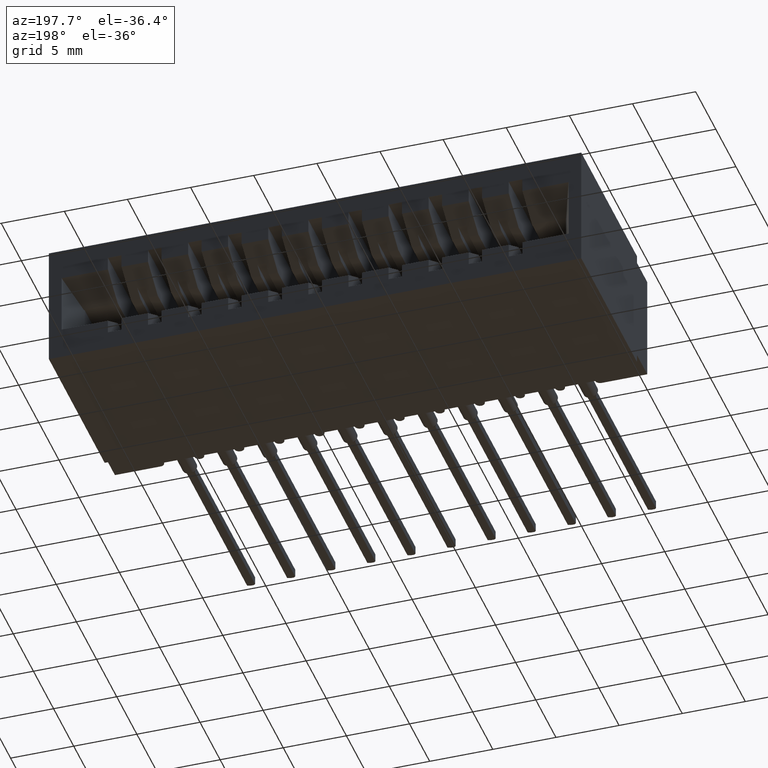
[diagram: clean part render]
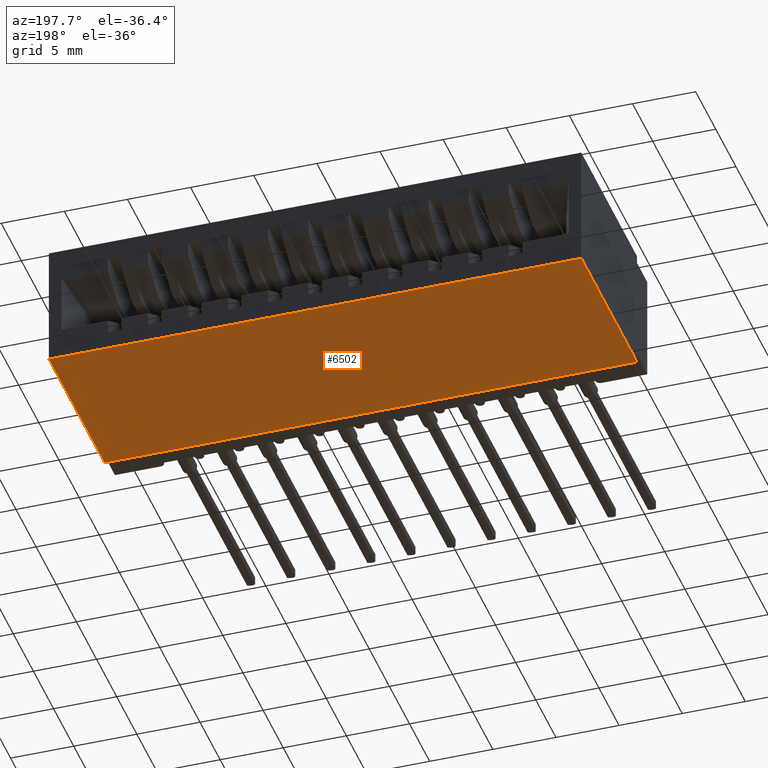
[diagram: same view with one face highlighted and labeled with its STEP entity id]
A machine part, auxiliary view. The second image highlights one B-rep face of the part: STEP entity #6502.
In plain terms, the highlighted planar face has unit normal (0, 0, 1).
Its self-contained STEP definition (entity closure, byte-faithful):
#139 = EDGE_LOOP ( 'NONE', ( #13886, #20060, #6934, #12997 ) ) ;
#1458 = EDGE_CURVE ( 'NONE', #14097, #2263, #3202, .T. ) ;
#2263 = VERTEX_POINT ( 'NONE', #16238 ) ;
#2343 = FACE_OUTER_BOUND ( 'NONE', #139, .T. ) ;
#2993 = EDGE_CURVE ( 'NONE', #19925, #10381, #3387, .T. ) ;
#3087 = CARTESIAN_POINT ( 'NONE',  ( 1.660000000000000142, 0.1000000000000000056, -0.3900000000000000133 ) ) ;
#3202 = LINE ( 'NONE', #3087, #6222 ) ;
#3261 = CARTESIAN_POINT ( 'NONE',  ( 0.0000000000000000000, 0.6449999999999999067, -0.3900000000000000133 ) ) ;
#3387 = LINE ( 'NONE', #19343, #20324 ) ;
#3410 = DIRECTION ( 'NONE',  ( -1.000000000000000000, -0.0000000000000000000, -0.0000000000000000000 ) ) ;
#3418 = EDGE_CURVE ( 'NONE', #10381, #2263, #4744, .T. ) ;
#3483 = DIRECTION ( 'NONE',  ( -0.0000000000000000000, -1.000000000000000000, -0.0000000000000000000 ) ) ;
#4744 = LINE ( 'NONE', #3261, #20330 ) ;
#5070 = CARTESIAN_POINT ( 'NONE',  ( 1.660000000000000142, 0.6449999999999999067, -0.3900000000000000133 ) ) ;
#5661 = CARTESIAN_POINT ( 'NONE',  ( 0.0000000000000000000, 0.6449999999999999067, -0.3900000000000000133 ) ) ;
#6222 = VECTOR ( 'NONE', #3410, 39.37007874015748143 ) ;
#6502 = ADVANCED_FACE ( 'NONE', ( #2343 ), #8852, .F. ) ;
#6934 = ORIENTED_EDGE ( 'NONE', *, *, #3418, .F. ) ;
#7132 = CARTESIAN_POINT ( 'NONE',  ( 0.0000000000000000000, 0.6449999999999999067, -0.3900000000000000133 ) ) ;
#8852 = PLANE ( 'NONE',  #20765 ) ;
#9507 = EDGE_CURVE ( 'NONE', #19925, #14097, #19437, .T. ) ;
#10381 = VERTEX_POINT ( 'NONE', #7132 ) ;
#11361 = CARTESIAN_POINT ( 'NONE',  ( 1.660000000000000142, 0.6449999999999999067, -0.3900000000000000133 ) ) ;
#12204 = CARTESIAN_POINT ( 'NONE',  ( 1.660000000000000142, 0.1000000000000000056, -0.3900000000000000133 ) ) ;
#12997 = ORIENTED_EDGE ( 'NONE', *, *, #2993, .F. ) ;
#13377 = VECTOR ( 'NONE', #3483, 39.37007874015748143 ) ;
#13886 = ORIENTED_EDGE ( 'NONE', *, *, #9507, .T. ) ;
#14097 = VERTEX_POINT ( 'NONE', #12204 ) ;
#14349 = DIRECTION ( 'NONE',  ( -1.000000000000000000, -0.0000000000000000000, -0.0000000000000000000 ) ) ;
#15342 = DIRECTION ( 'NONE',  ( 0.0000000000000000000, 0.0000000000000000000, 1.000000000000000000 ) ) ;
#15452 = DIRECTION ( 'NONE',  ( 1.000000000000000000, 0.0000000000000000000, -0.0000000000000000000 ) ) ;
#16238 = CARTESIAN_POINT ( 'NONE',  ( 0.0000000000000000000, 0.1000000000000000056, -0.3900000000000000133 ) ) ;
#17723 = DIRECTION ( 'NONE',  ( -0.0000000000000000000, -1.000000000000000000, -0.0000000000000000000 ) ) ;
#19343 = CARTESIAN_POINT ( 'NONE',  ( 0.0000000000000000000, 0.6449999999999999067, -0.3900000000000000133 ) ) ;
#19437 = LINE ( 'NONE', #5070, #13377 ) ;
#19925 = VERTEX_POINT ( 'NONE', #11361 ) ;
#20060 = ORIENTED_EDGE ( 'NONE', *, *, #1458, .T. ) ;
#20324 = VECTOR ( 'NONE', #14349, 39.37007874015748143 ) ;
#20330 = VECTOR ( 'NONE', #17723, 39.37007874015748143 ) ;
#20765 = AXIS2_PLACEMENT_3D ( 'NONE', #5661, #15342, #15452 ) ;